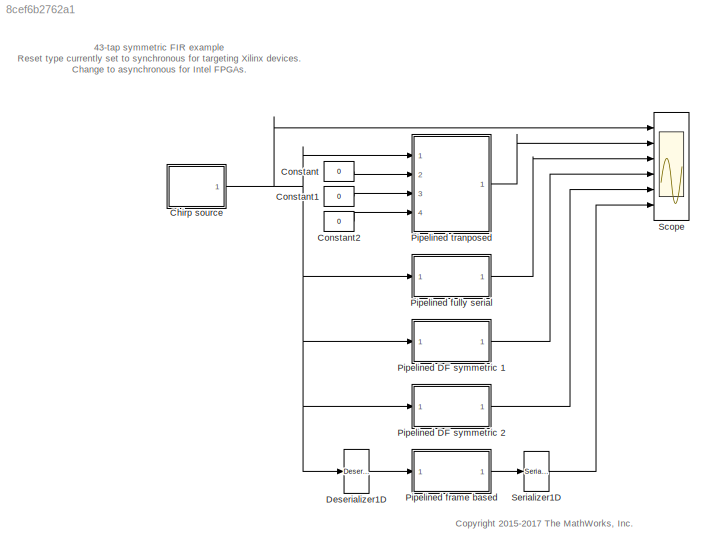
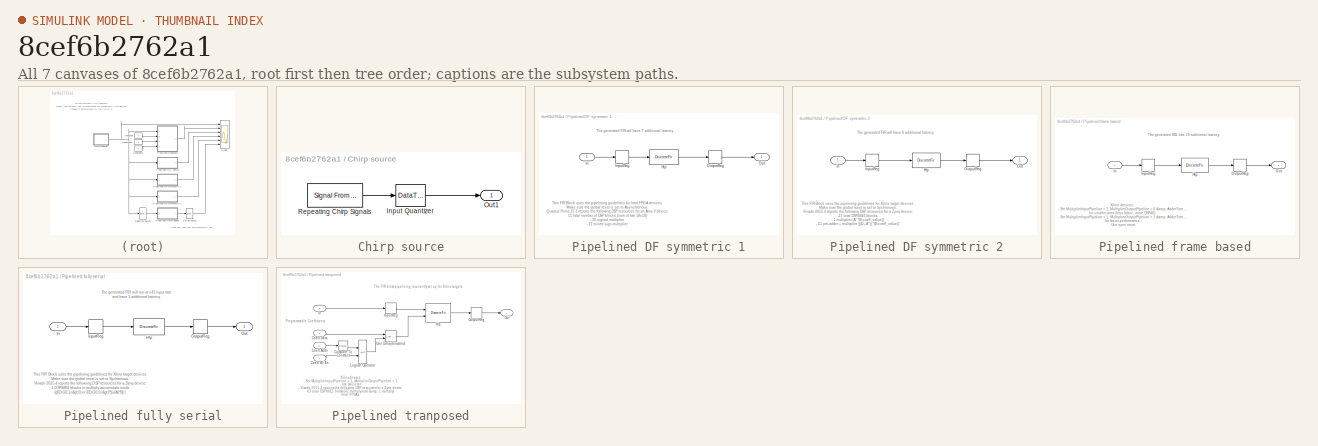
[diagram: thumbnail index - all 7 canvases of the model, root first then tree order]
MODEL slx_8cef6b2762a1
KIND model
CONFIG AbsTol = auto
CONFIG EnableMultiTasking = off
CONFIG FixedStep = auto
CONFIG MaxStep = auto
CONFIG MinStep = auto
CONFIG PostLoadFcn = Fpass = 0.45;  % Passband Frequency\nFstop = 0.55;  % Stopband Frequency\nApass = 1;     % Passband Ripple (dB)\nAstop = 60;    % Stopband Attenuation (dB)\n\nh = fdesign.lowpass('fp,fst,ap,ast', Fpass, Fstop, Apass, Astop);\n\nHd = design(h, 'equiripple', ...\n    'FilterStructure', 'dfsymfir', ...\n    'MinOrder', 'any', ...\n    'StopbandShape', 'flat');\n\nT = 300;
CONFIG RelTol = 1e-3
CONFIG SampleTimeConstraint = Unconstrained
CONFIG Solver = FixedStepDiscrete
CONFIG SolverName = FixedStepDiscrete
CONFIG StartTime = 0.0
CONFIG StopTime = 300
BLOCK [SubSystem] Chirp source
  Ports = [0, 1]
  RequestExecContextInheritance = off
BLOCK [DataTypeConversion] Chirp source/Input Quantizer
  OutDataTypeStr = fixdt(1,16,15)
  RndMeth = Round
BLOCK [Outport] Chirp source/Out1
  IconDisplay = Port number
BLOCK [Reference] Chirp source/Repeating Chirp Signals  REF=dspsrcs4/Signal From
Workspace
  Ports = [0, 1]
  SourceBlock = dspsrcs4/Signal From\nWorkspace
  SourceProductBaseCode = DS
  SourceProductName = DSP System Toolbox
  SourceType = Signal From Workspace
BLOCK [Constant] Constant
  OutDataTypeStr = fixdt(1,16,15)
  SampleTime = -1
  Value = 0
BLOCK [Constant] Constant1
  OutDataTypeStr = fixdt(0,8,0)
  SampleTime = -1
  Value = 0
BLOCK [Constant] Constant2
  OutDataTypeStr = boolean
  SampleTime = -1
  Value = 0
BLOCK [Reference] Deserializer1D  REF=hdlsllib/HDL Operations/Deserializer1D
  Ports = [1, 1]
  SourceBlock = hdlsllib/HDL Operations/Deserializer1D
  SourceProductBaseCode = SL
  SourceProductName = Simulink
  SourceType = Deserializer1D
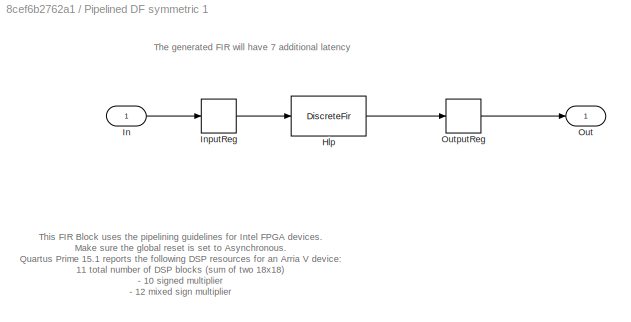
BLOCK [SubSystem] Pipelined DF symmetric 1
  Ports = [1, 1]
  RequestExecContextInheritance = off
  Tag = BlockMethodSubSystem
BLOCK [DiscreteFir] Pipelined DF symmetric 1/Hlp
  AttributesFormatString = AddPipelineRegisters : on\nInputPipeline : 1\nMultiplierOutputPipeline : 1
  Coefficients = Hd.Numerator
  FilterStructure = Direct form symmetric
  InputPortMap = u0
  OutputPortMap = o0
  Ports = [1, 1]
  Tag = BlockMethodSubSystem
  TapSumDataTypeStr = Inherit: Inherit via internal rule
BLOCK [Inport] Pipelined DF symmetric 1/In
  IconDisplay = Port number
BLOCK [Delay] Pipelined DF symmetric 1/InputReg
  DelayLength = 1
  InitialCondition = 0
  InputPortMap = u0
  Ports = [1, 1]
BLOCK [Outport] Pipelined DF symmetric 1/Out
  IconDisplay = Port number
BLOCK [Delay] Pipelined DF symmetric 1/OutputReg
  DelayLength = 1
  InitialCondition = 0
  InputPortMap = u0
  Ports = [1, 1]
BLOCK [SubSystem] Pipelined DF symmetric 2
  Ports = [1, 1]
  RequestExecContextInheritance = off
  Tag = BlockMethodSubSystem
BLOCK [DiscreteFir] Pipelined DF symmetric 2/Hlp
  AttributesFormatString = AddPipelineRegisters : on\nInputPipeline : 1\nMultiplierInputPipeline : 1\nMultiplierOutputPipeline : 1
  Coefficients = Hd.Numerator
  FilterStructure = Direct form symmetric
  InputPortMap = u0
  OutputPortMap = o0
  Ports = [1, 1]
  Tag = BlockMethodSubSystem
  TapSumDataTypeStr = Inherit: Inherit via internal rule
BLOCK [Inport] Pipelined DF symmetric 2/In
  IconDisplay = Port number
BLOCK [Delay] Pipelined DF symmetric 2/InputReg
  DelayLength = 1
  InitialCondition = 0
  InputPortMap = u0
  Ports = [1, 1]
BLOCK [Outport] Pipelined DF symmetric 2/Out
  IconDisplay = Port number
BLOCK [Delay] Pipelined DF symmetric 2/OutputReg
  DelayLength = 1
  InitialCondition = 0
  InputPortMap = u0
  Ports = [1, 1]
BLOCK [SubSystem] Pipelined frame based
  Ports = [1, 1]
  RequestExecContextInheritance = off
  Tag = BlockMethodSubSystem
BLOCK [DiscreteFir] Pipelined frame based/Hlp
  AttributesFormatString = Architecture : Frame Based\nAdderTreePipeline : 2\nMultiplierInputPipeline : 1\nMultiplierOutputPipeline : 1
  Coefficients = Hd.Numerator
  InputPortMap = u0
  InputProcessing = Columns as channels (frame based)
  OutputPortMap = o0
  Ports = [1, 1]
  Tag = BlockMethodSubSystem
BLOCK [Inport] Pipelined frame based/In
  IconDisplay = Port number
BLOCK [Delay] Pipelined frame based/InputReg
  DelayLength = 1
  InitialCondition = 0
  InputPortMap = u0
  Ports = [1, 1]
BLOCK [Outport] Pipelined frame based/Out
  IconDisplay = Port number
BLOCK [Delay] Pipelined frame based/OutputReg
  DelayLength = 1
  InitialCondition = 0
  InputPortMap = u0
  Ports = [1, 1]
BLOCK [SubSystem] Pipelined fully serial
  Ports = [1, 1]
  RequestExecContextInheritance = off
  Tag = BlockMethodSubSystem
BLOCK [DiscreteFir] Pipelined fully serial/Hlp
  AttributesFormatString = Architecture : Fully Serial\nMultiplierInputPipeline : 1\nMultiplierOutputPipeline : 1
  Coefficients = Hd.Numerator
  InputPortMap = u0
  OutputPortMap = o0
  Ports = [1, 1]
  Tag = BlockMethodSubSystem
BLOCK [Inport] Pipelined fully serial/In
  IconDisplay = Port number
BLOCK [Delay] Pipelined fully serial/InputReg
  DelayLength = 1
  InitialCondition = 0
  InputPortMap = u0
  Ports = [1, 1]
BLOCK [Outport] Pipelined fully serial/Out
  IconDisplay = Port number
BLOCK [Delay] Pipelined fully serial/OutputReg
  DelayLength = 1
  InitialCondition = 0
  InputPortMap = u0
  Ports = [1, 1]
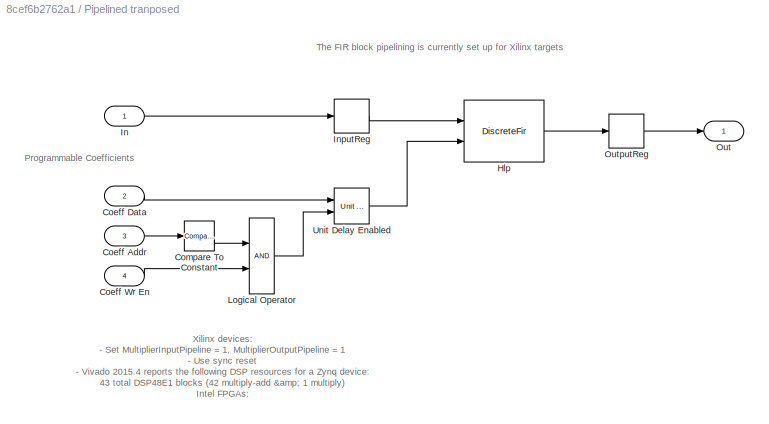
BLOCK [SubSystem] Pipelined tranposed
  Ports = [4, 1]
  RequestExecContextInheritance = off
  Tag = BlockMethodSubSystem
BLOCK [Inport] Pipelined tranposed/Coeff Addr
  IconDisplay = Port number
  Port = 3
BLOCK [Inport] Pipelined tranposed/Coeff Data
  IconDisplay = Port number
  Port = 2
BLOCK [Inport] Pipelined tranposed/Coeff Wr En
  IconDisplay = Port number
  Port = 4
BLOCK [Reference] Pipelined tranposed/Compare To Constant  REF=simulink/Logic and Bit
Operations/Compare
To Constant
  Ports = [1, 1]
  SourceBlock = simulink/Logic and Bit\nOperations/Compare\nTo Constant
  SourceProductBaseCode = SL
  SourceProductName = Simulink
  SourceType = Compare To Constant
BLOCK [DiscreteFir] Pipelined tranposed/Hlp
  AttributesFormatString = Architecture : Fully Parallel\nMultiplierInputPipeline : 1\nMultiplierOutputPipeline : 1
  CoefSource = Input port
  Coefficients = Hd.Numerator
  FilterStructure = Direct form transposed
  InputPortMap = u0,u1
  OutputPortMap = o0
  Ports = [2, 1]
  Tag = BlockMethodSubSystem
BLOCK [Inport] Pipelined tranposed/In
  IconDisplay = Port number
BLOCK [Delay] Pipelined tranposed/InputReg
  DelayLength = 1
  InitialCondition = 0
  InputPortMap = u0
  Ports = [1, 1]
BLOCK [Logic] Pipelined tranposed/Logical Operator
  AllPortsSameDT = off
  OutDataTypeStr = boolean
  Ports = [2, 1]
BLOCK [Outport] Pipelined tranposed/Out
  IconDisplay = Port number
BLOCK [Delay] Pipelined tranposed/OutputReg
  DelayLength = 1
  InitialCondition = 0
  InputPortMap = u0
  Ports = [1, 1]
BLOCK [Reference] Pipelined tranposed/Unit Delay Enabled  REF=simulink_need_slupdate/Unit Delay
Enabled
  Ports = [2, 1]
  SourceBlock = simulink_need_slupdate/Unit Delay\nEnabled
  SourceProductBaseCode = SL
  SourceProductName = Simulink
  SourceType = Unit Delay Enabled
BLOCK [Scope] Scope
  Floating = off
  NumInputPorts = 6
  Ports = [6]
  ScopeSpecificationString = Simulink.scopes.TimeScopeBlockCfg('CurrentConfiguration', extmgr.ConfigurationSet(extmgr.Configuration('Core','General UI',true),extmgr.Configuration('Core','Source UI',true),extmgr.Configuration('Sources','WiredSimulink',true,'DataLoggingVariableName','ScopeData2','DataLoggingSaveFormat','StructureWithTime','DataLoggingDecimation','1','DataLoggingDecimateData',true),extmgr.Configuration('Visuals'...<+5058ch>
BLOCK [Reference] Serializer1D  REF=hdlsllib/HDL Operations/Serializer1D
  Ports = [1, 1]
  SourceBlock = hdlsllib/HDL Operations/Serializer1D
  SourceProductBaseCode = SL
  SourceProductName = Simulink
  SourceType = Serializer1D
ANNOTATION (root): 43-tap symmetric FIR example Reset type currently set to synchronous for targeting Xilinx devices. Change to asynchronous for Intel FPGAs.
ANNOTATION (root): <copyright redacted>
ANNOTATION Pipelined DF symmetric 1: This FIR Block uses the pipelining guidelines for Intel FPGA devices . Make sure the global reset is set to Asynchronous . Quartus Prime 15.1 reports the following DSP resources for an Arria V device: 11 total number of DSP blocks (sum of two 18x18) - 10 signed multiplier - 12 mixed sign multiplier - 20 dedicated pre-adder - 22 dedicated coefficient storage
ANNOTATION Pipelined DF symmetric 1: The generated FIR will have 7 additional latency
ANNOTATION Pipelined DF symmetric 2: This FIR Block uses the pipelining guidelines for Xilinx target devices . Make sure the global reset is set to Sychronous . Vivado 2015.4 reports the following DSP resources for a Zynq device: 27 total DSP48E1 blocks - 1 multiplier (A''*(B:coeff_value))' - 11 pre-adder + multiplier (((D'+A''))'*(B:coeff_value))' - 10 pre-adder + multiplier + adder (PCIN+(((D'+A''))'*(B:coeff_value))')' - 5 adder (...<+10ch>
ANNOTATION Pipelined DF symmetric 2: The generated FIR will have 8 additional latency
ANNOTATION Pipelined frame based: The generated HDL has 16 additional latency
ANNOTATION Pipelined frame based: Xilinx devices: - Set MultiplierInputPipeline = 1, MultiplierOutputPipeline = 0 & AdderTreePipeline = 1 for smaller area (less fabric, more DSP48) - Set MultiplierInputPipeline = 1, MultiplierOutputPipeline = 1 & AdderTreePipeline = 2 for faster performance - Use sync reset Intel FPGAs: - Set MultiplierInputPipeline = 1, MultiplierOutputPipeline = 1 - Set AdderTreePipeline = 1 to 2 - Use async res...<+2ch>
ANNOTATION Pipelined fully serial: This FIR Block uses the pipelining guidelines for Xilinx target devices . Make sure the global reset is set to Sychronous . Vivado 2015.4 reports the following DSP resources for a Zynq device: 1 DSP48E1 blocks in multiply-accumulate mode (((EDGE:1=>0) or (EDGE:0=>P))+(A2*B)')'
ANNOTATION Pipelined fully serial: The generated FIR will run at x43 input rate and have 2 additional latency
ANNOTATION Pipelined tranposed: Xilinx devices: - Set MultiplierInputPipeline = 1, MultiplierOutputPipeline = 1 - Use sync reset - Vivado 2015.4 reports the following DSP resources for a Zynq device: 43 total DSP48E1 blocks (42 multiply-add & 1 multiply) Intel FPGAs: - Set MultiplierInputPipeline = 1, MultiplierOutputPipeline = 0 - Use async reset - Quartus Prime 15.1 reports the following DSP resources for an Arria V device: 22...<+55ch>
ANNOTATION Pipelined tranposed: Programmable Coefficients
ANNOTATION Pipelined tranposed: The FIR block pipelining is currently set up for Xilinx targets
LINE Chirp source/Input Quantizer:1 -> Chirp source/Out1:1
LINE Chirp source/Repeating Chirp Signals:1 -> Chirp source/Input Quantizer:1
NET Chirp source:1 -> Deserializer1D:1, Pipelined DF symmetric 1:1, Pipelined DF symmetric 2:1, Pipelined fully serial:1, Pipelined tranposed:1, Scope:1
LINE Constant1:1 -> Pipelined tranposed:3
LINE Constant2:1 -> Pipelined tranposed:4
LINE Constant:1 -> Pipelined tranposed:2
LINE Deserializer1D:1 -> Pipelined frame based:1
LINE Pipelined DF symmetric 1/Hlp:1 -> Pipelined DF symmetric 1/OutputReg:1
LINE Pipelined DF symmetric 1/In:1 -> Pipelined DF symmetric 1/InputReg:1
LINE Pipelined DF symmetric 1/InputReg:1 -> Pipelined DF symmetric 1/Hlp:1
LINE Pipelined DF symmetric 1/OutputReg:1 -> Pipelined DF symmetric 1/Out:1
LINE Pipelined DF symmetric 1:1 -> Scope:4
LINE Pipelined DF symmetric 2/Hlp:1 -> Pipelined DF symmetric 2/OutputReg:1
LINE Pipelined DF symmetric 2/In:1 -> Pipelined DF symmetric 2/InputReg:1
LINE Pipelined DF symmetric 2/InputReg:1 -> Pipelined DF symmetric 2/Hlp:1
LINE Pipelined DF symmetric 2/OutputReg:1 -> Pipelined DF symmetric 2/Out:1
LINE Pipelined DF symmetric 2:1 -> Scope:5
LINE Pipelined frame based/Hlp:1 -> Pipelined frame based/OutputReg:1
LINE Pipelined frame based/In:1 -> Pipelined frame based/InputReg:1
LINE Pipelined frame based/InputReg:1 -> Pipelined frame based/Hlp:1
LINE Pipelined frame based/OutputReg:1 -> Pipelined frame based/Out:1
LINE Pipelined frame based:1 -> Serializer1D:1
LINE Pipelined fully serial/Hlp:1 -> Pipelined fully serial/OutputReg:1
LINE Pipelined fully serial/In:1 -> Pipelined fully serial/InputReg:1
LINE Pipelined fully serial/InputReg:1 -> Pipelined fully serial/Hlp:1
LINE Pipelined fully serial/OutputReg:1 -> Pipelined fully serial/Out:1
LINE Pipelined fully serial:1 -> Scope:3
LINE Pipelined tranposed/Coeff Addr:1 -> Pipelined tranposed/Compare To Constant:1
LINE Pipelined tranposed/Coeff Data:1 -> Pipelined tranposed/Unit Delay Enabled:1
LINE Pipelined tranposed/Coeff Wr En:1 -> Pipelined tranposed/Logical Operator:2
LINE Pipelined tranposed/Compare To Constant:1 -> Pipelined tranposed/Logical Operator:1
LINE Pipelined tranposed/Hlp:1 -> Pipelined tranposed/OutputReg:1
LINE Pipelined tranposed/In:1 -> Pipelined tranposed/InputReg:1
LINE Pipelined tranposed/InputReg:1 -> Pipelined tranposed/Hlp:1
LINE Pipelined tranposed/Logical Operator:1 -> Pipelined tranposed/Unit Delay Enabled:2
LINE Pipelined tranposed/OutputReg:1 -> Pipelined tranposed/Out:1
LINE Pipelined tranposed/Unit Delay Enabled:1 -> Pipelined tranposed/Hlp:2
LINE Pipelined tranposed:1 -> Scope:2
LINE Serializer1D:1 -> Scope:6
note: NET lines group one-source signal fan-out (src -> all destinations, sorted); 1:1 wires keep LINE
